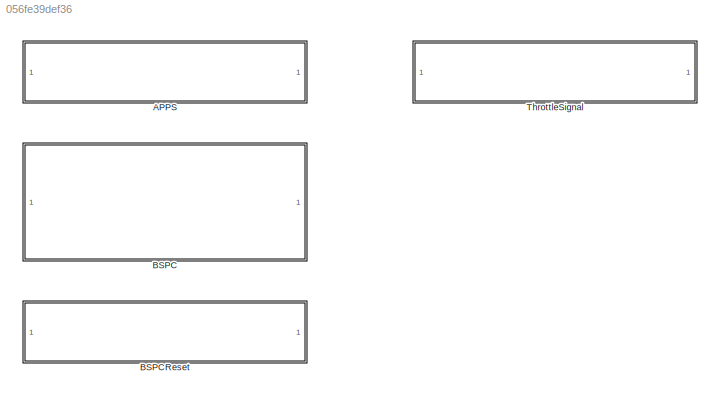
MODEL slx_056fe39def36
KIND library
CONFIG AbsTol = auto
CONFIG EnableMultiTasking = off
CONFIG FixedStep = auto
CONFIG MaxStep = auto
CONFIG MinStep = auto
CONFIG RelTol = 1e-3
CONFIG SampleTimeConstraint = Unconstrained
CONFIG SolverName = VariableStepAuto
CONFIG StartTime = 0.0
CONFIG StopTime = 10.0
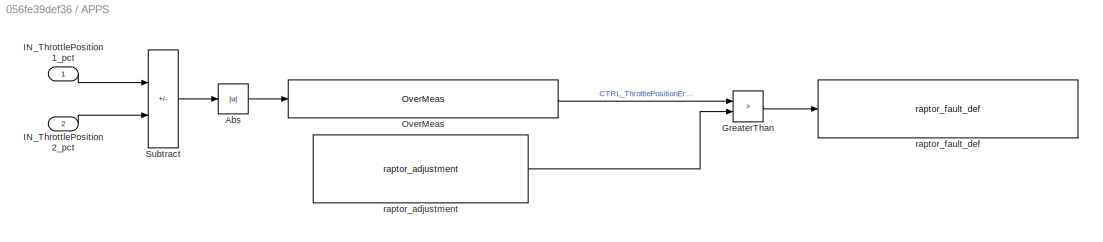
BLOCK [SubSystem] APPS
BLOCK [Abs] APPS/Abs
  SaturateOnIntegerOverflow = off
BLOCK [RelationalOperator] APPS/GreaterThan
  InputSameDT = off
  Operator = >
  OutDataTypeStr = boolean
  RndMeth = Simplest
BLOCK [Inport] APPS/IN_ThrottlePosition1_pct
BLOCK [Inport] APPS/IN_ThrottlePosition2_pct
  Port = 2
BLOCK [Reference] APPS/OverMeas  REF=Utilities/OverMeas
  SourceBlock = Utilities/OverMeas
BLOCK [Sum] APPS/Subtract
  IconShape = rectangular
  Inputs = +-
BLOCK [Reference] APPS/raptor_adjustment  REF=Raptor_lib/Data Storage/raptor_adjustment
  SourceBlock = Raptor_lib/Data Storage/raptor_adjustment
  SourceProductName = Raptor
  SourceType = Adjustment
BLOCK [Reference] APPS/raptor_fault_def  REF=Raptor_lib/Faults/raptor_fault_def
  SourceBlock = Raptor_lib/Faults/raptor_fault_def
  SourceProductName = Raptor
  SourceType = Fault Definition
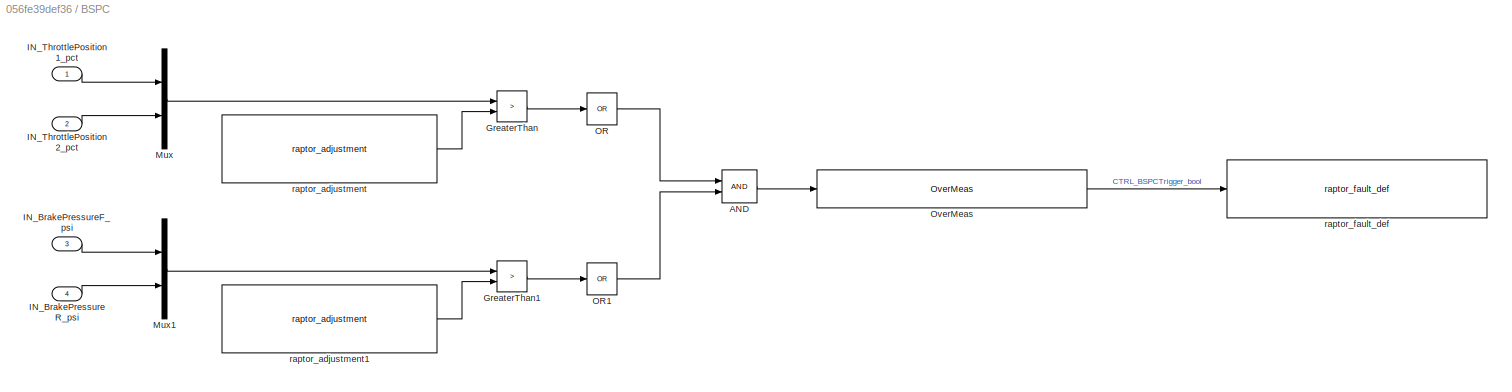
BLOCK [SubSystem] BSPC
BLOCK [Logic] BSPC/AND
  AllPortsSameDT = off
  OutDataTypeStr = boolean
BLOCK [RelationalOperator] BSPC/GreaterThan
  InputSameDT = off
  Operator = >
  OutDataTypeStr = boolean
  RndMeth = Simplest
BLOCK [RelationalOperator] BSPC/GreaterThan1
  InputSameDT = off
  Operator = >
  OutDataTypeStr = boolean
  RndMeth = Simplest
BLOCK [Inport] BSPC/IN_BrakePressureF_psi
  Port = 3
BLOCK [Inport] BSPC/IN_BrakePressureR_psi
  Port = 4
BLOCK [Inport] BSPC/IN_ThrottlePosition1_pct
BLOCK [Inport] BSPC/IN_ThrottlePosition2_pct
  Port = 2
BLOCK [Mux] BSPC/Mux
  DisplayOption = bar
  Inputs = 2
BLOCK [Mux] BSPC/Mux1
  DisplayOption = bar
  Inputs = 2
BLOCK [Logic] BSPC/OR
  AllPortsSameDT = off
  Inputs = 1
  Operator = OR
  OutDataTypeStr = boolean
BLOCK [Logic] BSPC/OR1
  AllPortsSameDT = off
  Inputs = 1
  Operator = OR
  OutDataTypeStr = boolean
BLOCK [Reference] BSPC/OverMeas  REF=Utilities/OverMeas
  SourceBlock = Utilities/OverMeas
BLOCK [Reference] BSPC/raptor_adjustment  REF=Raptor_lib/Data Storage/raptor_adjustment
  SourceBlock = Raptor_lib/Data Storage/raptor_adjustment
  SourceProductName = Raptor
  SourceType = Adjustment
BLOCK [Reference] BSPC/raptor_adjustment1  REF=Raptor_lib/Data Storage/raptor_adjustment
  SourceBlock = Raptor_lib/Data Storage/raptor_adjustment
  SourceProductName = Raptor
  SourceType = Adjustment
BLOCK [Reference] BSPC/raptor_fault_def  REF=Raptor_lib/Faults/raptor_fault_def
  SourceBlock = Raptor_lib/Faults/raptor_fault_def
  SourceProductName = Raptor
  SourceType = Fault Definition
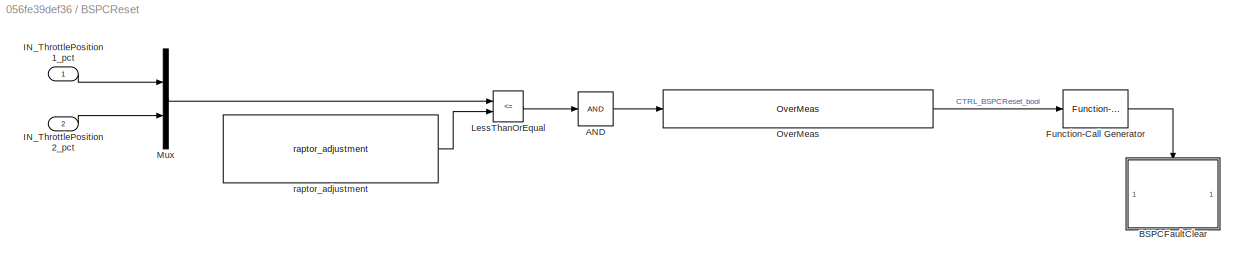
BLOCK [SubSystem] BSPCReset
BLOCK [Logic] BSPCReset/AND
  AllPortsSameDT = off
  Inputs = 1
  OutDataTypeStr = boolean
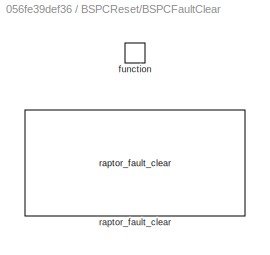
BLOCK [SubSystem] BSPCReset/BSPCFaultClear
  TreatAsAtomicUnit = on
BLOCK [TriggerPort] BSPCReset/BSPCFaultClear/function
  StatesWhenEnabling = held
  TriggerType = function-call
  VariantControl = (inherit)
BLOCK [Reference] BSPCReset/BSPCFaultClear/raptor_fault_clear  REF=Raptor_lib/Faults/raptor_fault_clear
  SourceBlock = Raptor_lib/Faults/raptor_fault_clear
  SourceProductName = Raptor
  SourceType = Clear Faults
BLOCK [Reference] BSPCReset/Function-Call Generator  REF=simulink/Ports &
Subsystems/Function-Call
Generator
  SourceBlock = simulink/Ports &\nSubsystems/Function-Call\nGenerator
  SourceType = Function-Call Generator
BLOCK [Inport] BSPCReset/IN_ThrottlePosition1_pct
BLOCK [Inport] BSPCReset/IN_ThrottlePosition2_pct
  Port = 2
BLOCK [RelationalOperator] BSPCReset/LessThanOrEqual
  InputSameDT = off
  Operator = <=
  OutDataTypeStr = boolean
  RndMeth = Simplest
BLOCK [Mux] BSPCReset/Mux
  DisplayOption = bar
  Inputs = 2
BLOCK [Reference] BSPCReset/OverMeas  REF=Utilities/OverMeas
  SourceBlock = Utilities/OverMeas
BLOCK [Reference] BSPCReset/raptor_adjustment  REF=Raptor_lib/Data Storage/raptor_adjustment
  SourceBlock = Raptor_lib/Data Storage/raptor_adjustment
  SourceProductName = Raptor
  SourceType = Adjustment
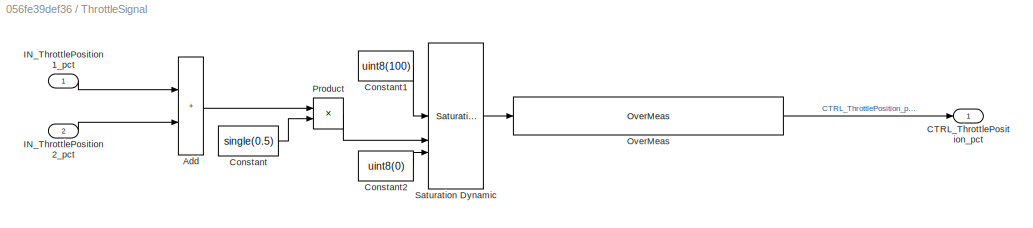
BLOCK [SubSystem] ThrottleSignal
BLOCK [Sum] ThrottleSignal/Add
  IconShape = rectangular
BLOCK [Outport] ThrottleSignal/CTRL_ThrottlePosition_pct
BLOCK [Constant] ThrottleSignal/Constant
  Value = single(0.5)
BLOCK [Constant] ThrottleSignal/Constant1
  Value = uint8(100)
BLOCK [Constant] ThrottleSignal/Constant2
  Value = uint8(0)
BLOCK [Inport] ThrottleSignal/IN_ThrottlePosition1_pct
BLOCK [Inport] ThrottleSignal/IN_ThrottlePosition2_pct
  Port = 2
BLOCK [Reference] ThrottleSignal/OverMeas  REF=Utilities/OverMeas
  SourceBlock = Utilities/OverMeas
BLOCK [Product] ThrottleSignal/Product
BLOCK [Reference] ThrottleSignal/Saturation Dynamic  REF=simulink/Discontinuities/Saturation
Dynamic
  SourceBlock = simulink/Discontinuities/Saturation\nDynamic
  SourceType = Saturation Dynamic
LINE APPS/Abs:1 -> APPS/OverMeas:1
LINE APPS/GreaterThan:1 -> APPS/raptor_fault_def:1
LINE APPS/IN_ThrottlePosition1_pct:1 -> APPS/Subtract:1
LINE APPS/IN_ThrottlePosition2_pct:1 -> APPS/Subtract:2
LINE APPS/OverMeas:1 -> APPS/GreaterThan:1
LINE APPS/Subtract:1 -> APPS/Abs:1
LINE APPS/raptor_adjustment:1 -> APPS/GreaterThan:2
LINE BSPC/AND:1 -> BSPC/OverMeas:1
LINE BSPC/GreaterThan1:1 -> BSPC/OR1:1
LINE BSPC/GreaterThan:1 -> BSPC/OR:1
LINE BSPC/IN_BrakePressureF_psi:1 -> BSPC/Mux1:1
LINE BSPC/IN_BrakePressureR_psi:1 -> BSPC/Mux1:2
LINE BSPC/IN_ThrottlePosition1_pct:1 -> BSPC/Mux:1
LINE BSPC/IN_ThrottlePosition2_pct:1 -> BSPC/Mux:2
LINE BSPC/Mux1:1 -> BSPC/GreaterThan1:1
LINE BSPC/Mux:1 -> BSPC/GreaterThan:1
LINE BSPC/OR1:1 -> BSPC/AND:2
LINE BSPC/OR:1 -> BSPC/AND:1
LINE BSPC/OverMeas:1 -> BSPC/raptor_fault_def:1
LINE BSPC/raptor_adjustment1:1 -> BSPC/GreaterThan1:2
LINE BSPC/raptor_adjustment:1 -> BSPC/GreaterThan:2
LINE BSPCReset/AND:1 -> BSPCReset/OverMeas:1
LINE BSPCReset/Function-Call Generator:1 -> BSPCReset/BSPCFaultClear:trigger
LINE BSPCReset/IN_ThrottlePosition1_pct:1 -> BSPCReset/Mux:1
LINE BSPCReset/IN_ThrottlePosition2_pct:1 -> BSPCReset/Mux:2
LINE BSPCReset/LessThanOrEqual:1 -> BSPCReset/AND:1
LINE BSPCReset/Mux:1 -> BSPCReset/LessThanOrEqual:1
LINE BSPCReset/OverMeas:1 -> BSPCReset/Function-Call Generator:1
LINE BSPCReset/raptor_adjustment:1 -> BSPCReset/LessThanOrEqual:2
LINE ThrottleSignal/Add:1 -> ThrottleSignal/Product:1
LINE ThrottleSignal/Constant1:1 -> ThrottleSignal/Saturation Dynamic:1
LINE ThrottleSignal/Constant2:1 -> ThrottleSignal/Saturation Dynamic:3
LINE ThrottleSignal/Constant:1 -> ThrottleSignal/Product:2
LINE ThrottleSignal/IN_ThrottlePosition1_pct:1 -> ThrottleSignal/Add:1
LINE ThrottleSignal/IN_ThrottlePosition2_pct:1 -> ThrottleSignal/Add:2
LINE ThrottleSignal/OverMeas:1 -> ThrottleSignal/CTRL_ThrottlePosition_pct:1
LINE ThrottleSignal/Product:1 -> ThrottleSignal/Saturation Dynamic:2
LINE ThrottleSignal/Saturation Dynamic:1 -> ThrottleSignal/OverMeas:1
